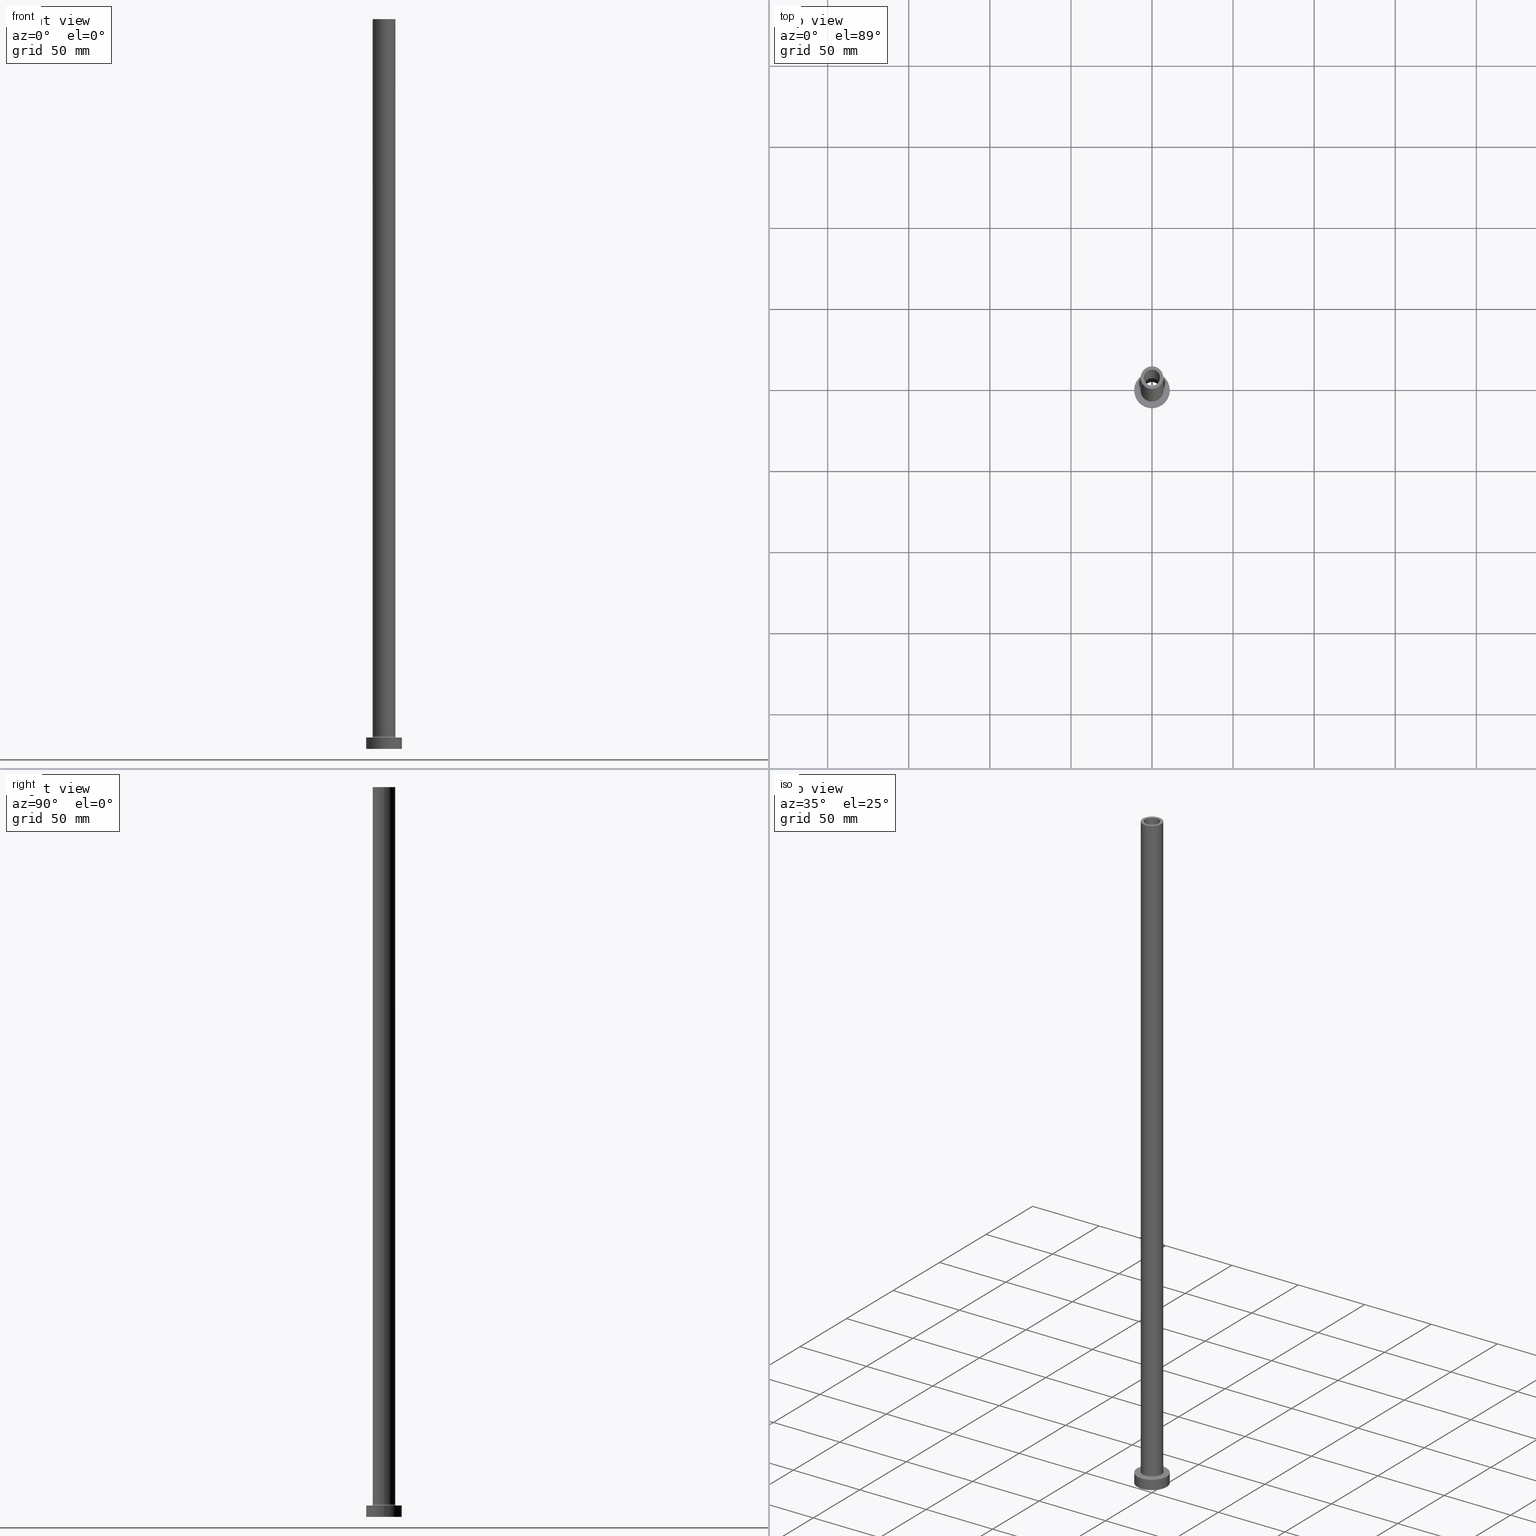
[diagram: canonical four-view strip — front | top / right | iso, engineering-drawing reading convention]
A machine part, canonical four-view strip (front | top / right | iso — engineering-drawing reading convention). The complete STEP part file that produces these views, byte-faithful:
ISO-10303-21;
HEADER;
FILE_DESCRIPTION (( 'STEP AP203' ),
    '1' );
FILE_NAME ('c3f9.STEP',
    '2023-02-13T10:06:24',
    ( '' ),
    ( '' ),
    'SwSTEP 2.0',
    'SolidWorks 2019',
    '' );
FILE_SCHEMA (( 'CONFIG_CONTROL_DESIGN' ));
ENDSEC;

DATA;
#1 = ADVANCED_BREP_SHAPE_REPRESENTATION ( 'c3f9', ( #118, #28 ), #54 ) ;
#2 = FACE_OUTER_BOUND ( 'NONE', #122, .T. ) ;
#3 = DIRECTION ( 'NONE',  ( 1.000000000000000000, 0.000000000000000000, 0.000000000000000000 ) ) ;
#4 = EDGE_LOOP ( 'NONE', ( #244, #272, #201, #21 ) ) ;
#5 = FACE_OUTER_BOUND ( 'NONE', #237, .T. ) ;
#6 = EDGE_CURVE ( 'NONE', #200, #267, #64, .T. ) ;
#7 = CIRCLE ( 'NONE', #354, 5.150000000000001243 ) ;
#8 = AXIS2_PLACEMENT_3D ( 'NONE', #113, #459, #142 ) ;
#9 = CARTESIAN_POINT ( 'NONE',  ( -11.00000000000000000, 0.000000000000000000, 7.000000000000000000 ) ) ;
#10 = VERTEX_POINT ( 'NONE', #449 ) ;
#11 = COORDINATED_UNIVERSAL_TIME_OFFSET ( 1, 0, .AHEAD. ) ;
#12 = CC_DESIGN_DATE_AND_TIME_ASSIGNMENT ( #290, #119, ( #335 ) ) ;
#13 = DIRECTION ( 'NONE',  ( -0.000000000000000000, -0.000000000000000000, -1.000000000000000000 ) ) ;
#14 = DATE_AND_TIME ( #124, #178 ) ;
#15 = ORIENTED_EDGE ( 'NONE', *, *, #386, .F. ) ;
#16 = TOROIDAL_SURFACE ( 'NONE', #27, 7.700000000000001066, 0.6999999999999999556 ) ;
#17 = CIRCLE ( 'NONE', #384, 5.000000000000000000 ) ;
#18 = CIRCLE ( 'NONE', #167, 0.7000000000000000666 ) ;
#19 = EDGE_CURVE ( 'NONE', #407, #134, #321, .T. ) ;
#20 = CALENDAR_DATE ( 2023, 13, 2 ) ;
#21 = ORIENTED_EDGE ( 'NONE', *, *, #125, .F. ) ;
#22 = SECURITY_CLASSIFICATION_LEVEL ( 'unclassified' ) ;
#23 = EDGE_CURVE ( 'NONE', #134, #407, #447, .T. ) ;
#24 = EDGE_LOOP ( 'NONE', ( #419, #285 ) ) ;
#25 = CARTESIAN_POINT ( 'NONE',  ( 0.000000000000000000, 0.000000000000000000, 405.0000000000000000 ) ) ;
#26 = APPROVAL_DATE_TIME ( #65, #351 ) ;
#27 = AXIS2_PLACEMENT_3D ( 'NONE', #257, #368, #197 ) ;
#28 = AXIS2_PLACEMENT_3D ( 'NONE', #171, #191, #298 ) ;
#29 = EDGE_LOOP ( 'NONE', ( #411, #150, #454, #230 ) ) ;
#30 = DIRECTION ( 'NONE',  ( 0.000000000000000000, 0.000000000000000000, 1.000000000000000000 ) ) ;
#31 = CC_DESIGN_PERSON_AND_ORGANIZATION_ASSIGNMENT ( #412, #260, ( #404 ) ) ;
#32 = CARTESIAN_POINT ( 'NONE',  ( 0.000000000000000000, 0.000000000000000000, 450.0000000000000000 ) ) ;
#33 = DIRECTION ( 'NONE',  ( -1.000000000000000000, 0.000000000000000000, 0.000000000000000000 ) ) ;
#34 = DIRECTION ( 'NONE',  ( 0.000000000000000000, 0.000000000000000000, 1.000000000000000000 ) ) ;
#35 = DIRECTION ( 'NONE',  ( 0.000000000000000000, 0.000000000000000000, -1.000000000000000000 ) ) ;
#36 = CIRCLE ( 'NONE', #427, 5.150000000000001243 ) ;
#37 = DIRECTION ( 'NONE',  ( 1.000000000000000000, 0.000000000000000000, 0.000000000000000000 ) ) ;
#38 = CARTESIAN_POINT ( 'NONE',  ( -5.150000000000001243, 0.000000000000000000, 419.5663996924429284 ) ) ;
#39 = FACE_BOUND ( 'NONE', #291, .T. ) ;
#40 = LINE ( 'NONE', #316, #410 ) ;
#41 = FACE_BOUND ( 'NONE', #24, .T. ) ;
#42 = AXIS2_PLACEMENT_3D ( 'NONE', #266, #58, #326 ) ;
#43 = AXIS2_PLACEMENT_3D ( 'NONE', #76, #221, #213 ) ;
#44 = EDGE_CURVE ( 'NONE', #184, #407, #306, .T. ) ;
#45 = DIRECTION ( 'NONE',  ( 1.000000000000000000, 0.000000000000000000, -0.000000000000000000 ) ) ;
#46 = LINE ( 'NONE', #460, #355 ) ;
#47 = AXIS2_PLACEMENT_3D ( 'NONE', #74, #319, #114 ) ;
#48 = PERSON_AND_ORGANIZATION_ROLE ( 'design_supplier' ) ;
#49 = CARTESIAN_POINT ( 'NONE',  ( 11.00000000000000000, 1.347111479062088405E-15, 7.000000000000000000 ) ) ;
#50 =( NAMED_UNIT ( * ) PLANE_ANGLE_UNIT ( ) SI_UNIT ( $, .RADIAN. ) );
#51 = EDGE_CURVE ( 'NONE', #55, #69, #246, .T. ) ;
#52 = CALENDAR_DATE ( 2023, 13, 2 ) ;
#53 = CIRCLE ( 'NONE', #194, 11.00000000000000000 ) ;
#54 =( GEOMETRIC_REPRESENTATION_CONTEXT ( 3 ) GLOBAL_UNCERTAINTY_ASSIGNED_CONTEXT ( ( #457 ) ) GLOBAL_UNIT_ASSIGNED_CONTEXT ( ( #196, #50, #130 ) ) REPRESENTATION_CONTEXT ( 'NONE', 'WORKASPACE' ) );
#55 = VERTEX_POINT ( 'NONE', #456 ) ;
#56 = APPLICATION_PROTOCOL_DEFINITION ( 'international standard', 'config_control_design', 1994, #390 ) ;
#57 = ADVANCED_FACE ( 'NONE', ( #414 ), #209, .T. ) ;
#58 = DIRECTION ( 'NONE',  ( 0.000000000000000000, 0.000000000000000000, 1.000000000000000000 ) ) ;
#59 = VERTEX_POINT ( 'NONE', #279 ) ;
#60 = APPROVAL ( #405, 'NEUR�EN�' ) ;
#61 = AXIS2_PLACEMENT_3D ( 'NONE', #425, #340, #33 ) ;
#62 = CARTESIAN_POINT ( 'NONE',  ( -5.150000000000001243, 0.000000000000000000, 0.000000000000000000 ) ) ;
#63 = ORIENTED_EDGE ( 'NONE', *, *, #386, .T. ) ;
#64 = LINE ( 'NONE', #304, #177 ) ;
#65 = DATE_AND_TIME ( #341, #247 ) ;
#66 = CARTESIAN_POINT ( 'NONE',  ( 0.000000000000000000, 0.000000000000000000, 7.699999999999985079 ) ) ;
#67 = AXIS2_PLACEMENT_3D ( 'NONE', #204, #378, #337 ) ;
#68 = APPROVAL_PERSON_ORGANIZATION ( #89, #302, #369 ) ;
#69 = VERTEX_POINT ( 'NONE', #347 ) ;
#70 = DIRECTION ( 'NONE',  ( 0.000000000000000000, 0.000000000000000000, 1.000000000000000000 ) ) ;
#71 = CYLINDRICAL_SURFACE ( 'NONE', #300, 5.000000000000000000 ) ;
#72 = EDGE_CURVE ( 'NONE', #55, #95, #98, .T. ) ;
#73 = DIRECTION ( 'NONE',  ( -1.000000000000000000, 1.224646799147351975E-16, 0.000000000000000000 ) ) ;
#74 = CARTESIAN_POINT ( 'NONE',  ( 0.000000000000000000, 0.000000000000000000, 7.000000000000000000 ) ) ;
#75 = CIRCLE ( 'NONE', #156, 7.700000000000001066 ) ;
#76 = CARTESIAN_POINT ( 'NONE',  ( 0.000000000000000000, 0.000000000000000000, 450.0000000000000000 ) ) ;
#77 = CARTESIAN_POINT ( 'NONE',  ( 0.000000000000000000, 0.000000000000000000, 419.5663996924429284 ) ) ;
#78 = CARTESIAN_POINT ( 'NONE',  ( -7.700000000000001066, 9.429780353434621002E-16, 6.999999999999992006 ) ) ;
#79 = DIRECTION ( 'NONE',  ( 1.000000000000000000, 0.000000000000000000, 0.000000000000000000 ) ) ;
#80 = ORIENTED_EDGE ( 'NONE', *, *, #231, .T. ) ;
#81 = DIRECTION ( 'NONE',  ( 1.000000000000000000, 0.000000000000000000, -0.000000000000000000 ) ) ;
#82 = FACE_OUTER_BOUND ( 'NONE', #214, .T. ) ;
#83 = ORIENTED_EDGE ( 'NONE', *, *, #251, .F. ) ;
#84 = AXIS2_PLACEMENT_3D ( 'NONE', #287, #437, #117 ) ;
#85 = DIRECTION ( 'NONE',  ( 0.000000000000000000, 0.000000000000000000, 1.000000000000000000 ) ) ;
#86 = ORIENTED_EDGE ( 'NONE', *, *, #439, .T. ) ;
#87 = COORDINATED_UNIVERSAL_TIME_OFFSET ( 1, 0, .AHEAD. ) ;
#88 = ORIENTED_EDGE ( 'NONE', *, *, #6, .T. ) ;
#89 = PERSON_AND_ORGANIZATION ( #160, #277 ) ;
#90 = DIRECTION ( 'NONE',  ( 1.000000000000000000, 0.000000000000000000, 0.000000000000000000 ) ) ;
#91 = EDGE_CURVE ( 'NONE', #136, #95, #7, .T. ) ;
#92 = APPROVAL_DATE_TIME ( #169, #302 ) ;
#93 = TOROIDAL_SURFACE ( 'NONE', #42, 7.700000000000001066, 0.6999999999999999556 ) ;
#94 = CARTESIAN_POINT ( 'NONE',  ( -11.00000000000000000, 0.000000000000000000, 0.000000000000000000 ) ) ;
#95 = VERTEX_POINT ( 'NONE', #62 ) ;
#96 = EDGE_CURVE ( 'NONE', #129, #330, #383, .T. ) ;
#97 = DIRECTION ( 'NONE',  ( -0.000000000000000000, -0.000000000000000000, -1.000000000000000000 ) ) ;
#98 = LINE ( 'NONE', #38, #228 ) ;
#99 = PRODUCT ( 'c3f9', 'c3f9', '', ( #235 ) ) ;
#100 = ORIENTED_EDGE ( 'NONE', *, *, #421, .T. ) ;
#101 = CIRCLE ( 'NONE', #203, 5.150000000000001243 ) ;
#102 = DIRECTION ( 'NONE',  ( -0.000000000000000000, -0.000000000000000000, -1.000000000000000000 ) ) ;
#103 = DIRECTION ( 'NONE',  ( 1.000000000000000000, 0.000000000000000000, 0.000000000000000000 ) ) ;
#104 = ORIENTED_EDGE ( 'NONE', *, *, #251, .T. ) ;
#105 = ORIENTED_EDGE ( 'NONE', *, *, #106, .F. ) ;
#106 = EDGE_CURVE ( 'NONE', #200, #165, #219, .T. ) ;
#107 = CARTESIAN_POINT ( 'NONE',  ( 7.700000000000001066, 0.000000000000000000, 6.999999999999992006 ) ) ;
#108 = DESIGN_CONTEXT ( 'detailed design', #390, 'design' ) ;
#109 = LOCAL_TIME ( 11, 6, 24.00000000000000000, #87 ) ;
#110 = PLANE ( 'NONE',  #453 ) ;
#111 = CC_DESIGN_PERSON_AND_ORGANIZATION_ASSIGNMENT ( #265, #127, ( #99 ) ) ;
#112 = DIRECTION ( 'NONE',  ( 1.000000000000000000, 0.000000000000000000, 0.000000000000000000 ) ) ;
#113 = CARTESIAN_POINT ( 'NONE',  ( 0.000000000000000000, 0.000000000000000000, 419.5663996924429284 ) ) ;
#114 = DIRECTION ( 'NONE',  ( 1.000000000000000000, 0.000000000000000000, 0.000000000000000000 ) ) ;
#115 = AXIS2_PLACEMENT_3D ( 'NONE', #284, #222, #45 ) ;
#116 = CARTESIAN_POINT ( 'NONE',  ( 0.000000000000000000, 0.000000000000000000, 450.0000000000000000 ) ) ;
#117 = DIRECTION ( 'NONE',  ( -1.000000000000000000, 0.000000000000000000, 0.000000000000000000 ) ) ;
#118 = MANIFOLD_SOLID_BREP ( 'Odebrat vysunut�m4', #145 ) ;
#119 = DATE_TIME_ROLE ( 'classification_date' ) ;
#120 = EDGE_LOOP ( 'NONE', ( #15, #422, #100, #299 ) ) ;
#121 = AXIS2_PLACEMENT_3D ( 'NONE', #32, #275, #416 ) ;
#122 = EDGE_LOOP ( 'NONE', ( #271, #80, #366, #262 ) ) ;
#123 = EDGE_LOOP ( 'NONE', ( #451, #371, #329, #172 ) ) ;
#124 = CALENDAR_DATE ( 2023, 13, 2 ) ;
#125 = EDGE_CURVE ( 'NONE', #128, #10, #434, .T. ) ;
#126 = EDGE_LOOP ( 'NONE', ( #360, #380, #225, #443 ) ) ;
#127 = PERSON_AND_ORGANIZATION_ROLE ( 'design_owner' ) ;
#128 = VERTEX_POINT ( 'NONE', #320 ) ;
#129 = VERTEX_POINT ( 'NONE', #356 ) ;
#130 =( NAMED_UNIT ( * ) SI_UNIT ( $, .STERADIAN. ) SOLID_ANGLE_UNIT ( ) );
#131 = VECTOR ( 'NONE', #382, 1000.000000000000000 ) ;
#132 = CYLINDRICAL_SURFACE ( 'NONE', #67, 7.000000000000000888 ) ;
#133 = LOCAL_TIME ( 11, 6, 24.00000000000000000, #226 ) ;
#134 = VERTEX_POINT ( 'NONE', #154 ) ;
#135 = ORIENTED_EDGE ( 'NONE', *, *, #303, .T. ) ;
#136 = VERTEX_POINT ( 'NONE', #392 ) ;
#137 = DIRECTION ( 'NONE',  ( -1.000000000000000000, 0.000000000000000000, 0.000000000000000000 ) ) ;
#138 = DIRECTION ( 'NONE',  ( 0.000000000000000000, 0.000000000000000000, -1.000000000000000000 ) ) ;
#139 = CIRCLE ( 'NONE', #393, 7.700000000000001066 ) ;
#140 = SHAPE_DEFINITION_REPRESENTATION ( #339, #1 ) ;
#141 = CARTESIAN_POINT ( 'NONE',  ( 0.000000000000000000, 0.000000000000000000, 0.000000000000000000 ) ) ;
#142 = DIRECTION ( 'NONE',  ( -1.000000000000000000, 0.000000000000000000, 0.000000000000000000 ) ) ;
#143 = DIRECTION ( 'NONE',  ( 1.000000000000000000, 0.000000000000000000, 0.000000000000000000 ) ) ;
#144 = ADVANCED_FACE ( 'NONE', ( #82 ), #71, .F. ) ;
#145 = CLOSED_SHELL ( 'NONE', ( #144, #176, #238, #409, #57, #229, #223, #336, #286, #396, #240, #399, #381, #295 ) ) ;
#146 = PRODUCT_DEFINITION_FORMATION_WITH_SPECIFIED_SOURCE ( 'LIBOVOLN�', '', #99, .NOT_KNOWN. ) ;
#147 = CYLINDRICAL_SURFACE ( 'NONE', #43, 7.000000000000000888 ) ;
#148 = PLANE ( 'NONE',  #115 ) ;
#149 = EDGE_CURVE ( 'NONE', #95, #136, #36, .T. ) ;
#150 = ORIENTED_EDGE ( 'NONE', *, *, #349, .T. ) ;
#151 = DIRECTION ( 'NONE',  ( 0.000000000000000000, 0.000000000000000000, 1.000000000000000000 ) ) ;
#152 = DIRECTION ( 'NONE',  ( 1.000000000000000000, 0.000000000000000000, 0.000000000000000000 ) ) ;
#153 = DIRECTION ( 'NONE',  ( 0.000000000000000000, -1.000000000000000000, 0.000000000000000000 ) ) ;
#154 = CARTESIAN_POINT ( 'NONE',  ( 7.000000000000000888, 8.572527594031474176E-16, 7.699999999999985079 ) ) ;
#155 = ORIENTED_EDGE ( 'NONE', *, *, #439, .F. ) ;
#156 = AXIS2_PLACEMENT_3D ( 'NONE', #343, #97, #455 ) ;
#157 = LOCAL_TIME ( 11, 6, 24.00000000000000000, #11 ) ;
#158 = DIRECTION ( 'NONE',  ( 1.000000000000000000, 0.000000000000000000, 0.000000000000000000 ) ) ;
#159 = ORIENTED_EDGE ( 'NONE', *, *, #217, .T. ) ;
#160 = PERSON ( 'NEUR�EN�', 'NEUR�EN�', 'NEUR�EN�', ('NEUR�EN�'), ('NEUR�EN�'), ('NEUR�EN�') ) ;
#161 = CALENDAR_DATE ( 2023, 13, 2 ) ;
#162 = APPROVAL_DATE_TIME ( #14, #60 ) ;
#163 = CC_DESIGN_PERSON_AND_ORGANIZATION_ASSIGNMENT ( #438, #199, ( #146 ) ) ;
#164 = AXIS2_PLACEMENT_3D ( 'NONE', #66, #310, #143 ) ;
#165 = VERTEX_POINT ( 'NONE', #49 ) ;
#166 = APPLICATION_PROTOCOL_DEFINITION ( 'international standard', 'config_control_design', 1994, #373 ) ;
#167 = AXIS2_PLACEMENT_3D ( 'NONE', #313, #153, #283 ) ;
#168 = ORIENTED_EDGE ( 'NONE', *, *, #308, .T. ) ;
#169 = DATE_AND_TIME ( #52, #133 ) ;
#170 = ORIENTED_EDGE ( 'NONE', *, *, #6, .F. ) ;
#171 = CARTESIAN_POINT ( 'NONE',  ( 0.000000000000000000, 0.000000000000000000, 0.000000000000000000 ) ) ;
#172 = ORIENTED_EDGE ( 'NONE', *, *, #72, .F. ) ;
#173 = FACE_OUTER_BOUND ( 'NONE', #444, .T. ) ;
#174 = AXIS2_PLACEMENT_3D ( 'NONE', #435, #70, #318 ) ;
#175 = DIRECTION ( 'NONE',  ( 0.000000000000000000, 0.000000000000000000, 1.000000000000000000 ) ) ;
#176 = ADVANCED_FACE ( 'NONE', ( #461 ), #186, .F. ) ;
#177 = VECTOR ( 'NONE', #179, 1000.000000000000000 ) ;
#178 = LOCAL_TIME ( 11, 6, 24.00000000000000000, #408 ) ;
#179 = DIRECTION ( 'NONE',  ( -0.000000000000000000, -0.000000000000000000, -1.000000000000000000 ) ) ;
#180 = CARTESIAN_POINT ( 'NONE',  ( -5.000000000000000000, 0.000000000000000000, 450.0000000000000000 ) ) ;
#181 = DIRECTION ( 'NONE',  ( 0.000000000000000000, 0.000000000000000000, 1.000000000000000000 ) ) ;
#182 = CARTESIAN_POINT ( 'NONE',  ( 7.000000000000000888, 8.572527594031474176E-16, 450.0000000000000000 ) ) ;
#183 = FACE_OUTER_BOUND ( 'NONE', #352, .T. ) ;
#184 = VERTEX_POINT ( 'NONE', #429 ) ;
#185 = DIRECTION ( 'NONE',  ( 1.000000000000000000, 0.000000000000000000, -0.000000000000000000 ) ) ;
#186 = CYLINDRICAL_SURFACE ( 'NONE', #281, 5.150000000000001243 ) ;
#187 = CARTESIAN_POINT ( 'NONE',  ( 7.000000000000000888, 8.572527594031474176E-16, 450.0000000000000000 ) ) ;
#188 = CYLINDRICAL_SURFACE ( 'NONE', #84, 11.00000000000000000 ) ;
#189 = PERSON_AND_ORGANIZATION ( #160, #277 ) ;
#190 = DIRECTION ( 'NONE',  ( -1.000000000000000000, 0.000000000000000000, 0.000000000000000000 ) ) ;
#191 = DIRECTION ( 'NONE',  ( 0.000000000000000000, 0.000000000000000000, 1.000000000000000000 ) ) ;
#192 = EDGE_CURVE ( 'NONE', #59, #267, #53, .T. ) ;
#193 = ORIENTED_EDGE ( 'NONE', *, *, #273, .T. ) ;
#194 = AXIS2_PLACEMENT_3D ( 'NONE', #359, #324, #152 ) ;
#195 = CC_DESIGN_APPROVAL ( #302, ( #146 ) ) ;
#196 =( LENGTH_UNIT ( ) NAMED_UNIT ( * ) SI_UNIT ( .MILLI., .METRE. ) );
#197 = DIRECTION ( 'NONE',  ( 1.000000000000000000, 0.000000000000000000, 0.000000000000000000 ) ) ;
#198 = ORIENTED_EDGE ( 'NONE', *, *, #421, .F. ) ;
#199 = PERSON_AND_ORGANIZATION_ROLE ( 'creator' ) ;
#200 = VERTEX_POINT ( 'NONE', #9 ) ;
#201 = ORIENTED_EDGE ( 'NONE', *, *, #346, .T. ) ;
#202 = ORIENTED_EDGE ( 'NONE', *, *, #346, .F. ) ;
#203 = AXIS2_PLACEMENT_3D ( 'NONE', #253, #398, #79 ) ;
#204 = CARTESIAN_POINT ( 'NONE',  ( 0.000000000000000000, 0.000000000000000000, 450.0000000000000000 ) ) ;
#205 = CARTESIAN_POINT ( 'NONE',  ( -7.000000000000000888, 0.000000000000000000, 450.0000000000000000 ) ) ;
#206 = ORIENTED_EDGE ( 'NONE', *, *, #303, .F. ) ;
#207 = FACE_OUTER_BOUND ( 'NONE', #4, .T. ) ;
#208 = CC_DESIGN_PERSON_AND_ORGANIZATION_ASSIGNMENT ( #189, #323, ( #335 ) ) ;
#209 = CYLINDRICAL_SURFACE ( 'NONE', #402, 11.00000000000000000 ) ;
#210 = AXIS2_PLACEMENT_3D ( 'NONE', #245, #34, #375 ) ;
#211 = AXIS2_PLACEMENT_3D ( 'NONE', #224, #85, #445 ) ;
#212 = DIRECTION ( 'NONE',  ( 0.000000000000000000, 0.000000000000000000, 1.000000000000000000 ) ) ;
#213 = DIRECTION ( 'NONE',  ( -1.000000000000000000, 0.000000000000000000, 0.000000000000000000 ) ) ;
#214 = EDGE_LOOP ( 'NONE', ( #86, #168, #357, #202 ) ) ;
#215 = LINE ( 'NONE', #182, #327 ) ;
#216 = DIRECTION ( 'NONE',  ( 0.000000000000000000, 0.000000000000000000, -1.000000000000000000 ) ) ;
#217 = EDGE_CURVE ( 'NONE', #184, #413, #241, .T. ) ;
#218 = AXIS2_PLACEMENT_3D ( 'NONE', #264, #294, #90 ) ;
#219 = CIRCLE ( 'NONE', #47, 11.00000000000000000 ) ;
#220 = ORIENTED_EDGE ( 'NONE', *, *, #149, .F. ) ;
#221 = DIRECTION ( 'NONE',  ( -0.000000000000000000, -0.000000000000000000, -1.000000000000000000 ) ) ;
#222 = DIRECTION ( 'NONE',  ( 0.000000000000000000, 0.000000000000000000, 1.000000000000000000 ) ) ;
#223 = ADVANCED_FACE ( 'NONE', ( #41, #183 ), #148, .T. ) ;
#224 = CARTESIAN_POINT ( 'NONE',  ( 0.000000000000000000, 0.000000000000000000, 450.0000000000000000 ) ) ;
#225 = ORIENTED_EDGE ( 'NONE', *, *, #44, .T. ) ;
#226 = COORDINATED_UNIVERSAL_TIME_OFFSET ( 1, 0, .AHEAD. ) ;
#227 = DIRECTION ( 'NONE',  ( 0.000000000000000000, 0.000000000000000000, -1.000000000000000000 ) ) ;
#228 = VECTOR ( 'NONE', #35, 1000.000000000000000 ) ;
#229 = ADVANCED_FACE ( 'NONE', ( #432 ), #188, .T. ) ;
#230 = ORIENTED_EDGE ( 'NONE', *, *, #44, .F. ) ;
#231 = EDGE_CURVE ( 'NONE', #69, #55, #101, .T. ) ;
#232 = APPROVAL_ROLE ( '' ) ;
#233 = ORIENTED_EDGE ( 'NONE', *, *, #231, .F. ) ;
#234 = APPROVAL_STATUS ( 'not_yet_approved' ) ;
#235 = MECHANICAL_CONTEXT ( 'NONE', #373, 'mechanical' ) ;
#236 = CARTESIAN_POINT ( 'NONE',  ( 11.00000000000000000, 1.347111479062088405E-15, 7.000000000000000000 ) ) ;
#237 = EDGE_LOOP ( 'NONE', ( #159, #441 ) ) ;
#238 = ADVANCED_FACE ( 'NONE', ( #363 ), #93, .F. ) ;
#239 = ORIENTED_EDGE ( 'NONE', *, *, #106, .T. ) ;
#240 = ADVANCED_FACE ( 'NONE', ( #332 ), #16, .F. ) ;
#241 = CIRCLE ( 'NONE', #440, 7.000000000000000888 ) ;
#242 = CIRCLE ( 'NONE', #282, 0.7000000000000000666 ) ;
#243 = APPROVAL_ROLE ( '' ) ;
#244 = ORIENTED_EDGE ( 'NONE', *, *, #308, .F. ) ;
#245 = CARTESIAN_POINT ( 'NONE',  ( 0.000000000000000000, 0.000000000000000000, 7.699999999999985079 ) ) ;
#246 = CIRCLE ( 'NONE', #376, 5.150000000000001243 ) ;
#247 = LOCAL_TIME ( 11, 6, 24.00000000000000000, #379 ) ;
#248 = CARTESIAN_POINT ( 'NONE',  ( 0.000000000000000000, 0.000000000000000000, 450.0000000000000000 ) ) ;
#249 = CARTESIAN_POINT ( 'NONE',  ( -7.000000000000000888, 0.000000000000000000, 7.699999999999985079 ) ) ;
#250 = DIRECTION ( 'NONE',  ( 0.000000000000000000, 0.000000000000000000, 1.000000000000000000 ) ) ;
#251 = EDGE_CURVE ( 'NONE', #267, #59, #418, .T. ) ;
#252 = CARTESIAN_POINT ( 'NONE',  ( 0.000000000000000000, 0.000000000000000000, 405.0000000000000000 ) ) ;
#253 = CARTESIAN_POINT ( 'NONE',  ( 0.000000000000000000, 0.000000000000000000, 405.0000000000000000 ) ) ;
#254 = CARTESIAN_POINT ( 'NONE',  ( 0.000000000000000000, 0.000000000000000000, 0.000000000000000000 ) ) ;
#255 = CARTESIAN_POINT ( 'NONE',  ( 0.000000000000000000, 0.000000000000000000, 0.000000000000000000 ) ) ;
#256 = PRODUCT_RELATED_PRODUCT_CATEGORY ( 'detail', '', ( #99 ) ) ;
#257 = CARTESIAN_POINT ( 'NONE',  ( 0.000000000000000000, 0.000000000000000000, 7.699999999999985079 ) ) ;
#258 = AXIS2_PLACEMENT_3D ( 'NONE', #423, #175, #37 ) ;
#259 = APPROVAL_PERSON_ORGANIZATION ( #458, #351, #243 ) ;
#260 = PERSON_AND_ORGANIZATION_ROLE ( 'creator' ) ;
#261 = ORIENTED_EDGE ( 'NONE', *, *, #91, .F. ) ;
#262 = ORIENTED_EDGE ( 'NONE', *, *, #149, .T. ) ;
#263 = DATE_AND_TIME ( #20, #109 ) ;
#264 = CARTESIAN_POINT ( 'NONE',  ( 0.000000000000000000, 0.000000000000000000, 0.000000000000000000 ) ) ;
#265 = PERSON_AND_ORGANIZATION ( #160, #277 ) ;
#266 = CARTESIAN_POINT ( 'NONE',  ( 0.000000000000000000, 0.000000000000000000, 7.699999999999985079 ) ) ;
#267 = VERTEX_POINT ( 'NONE', #94 ) ;
#268 = CC_DESIGN_APPROVAL ( #351, ( #335 ) ) ;
#269 = ORIENTED_EDGE ( 'NONE', *, *, #192, .T. ) ;
#270 = ORIENTED_EDGE ( 'NONE', *, *, #328, .F. ) ;
#271 = ORIENTED_EDGE ( 'NONE', *, *, #430, .F. ) ;
#272 = ORIENTED_EDGE ( 'NONE', *, *, #96, .T. ) ;
#273 = EDGE_CURVE ( 'NONE', #165, #59, #325, .T. ) ;
#274 = EDGE_LOOP ( 'NONE', ( #374, #403 ) ) ;
#275 = DIRECTION ( 'NONE',  ( 0.000000000000000000, 0.000000000000000000, 1.000000000000000000 ) ) ;
#276 = AXIS2_PLACEMENT_3D ( 'NONE', #25, #30, #420 ) ;
#277 = ORGANIZATION ( 'NEUR�EN�', 'NEUR�EN�', '' ) ;
#278 = CYLINDRICAL_SURFACE ( 'NONE', #61, 5.000000000000000000 ) ;
#279 = CARTESIAN_POINT ( 'NONE',  ( 11.00000000000000000, 1.347111479062088405E-15, 0.000000000000000000 ) ) ;
#280 = DIRECTION ( 'NONE',  ( -0.000000000000000000, -0.000000000000000000, -1.000000000000000000 ) ) ;
#281 = AXIS2_PLACEMENT_3D ( 'NONE', #77, #216, #317 ) ;
#282 = AXIS2_PLACEMENT_3D ( 'NONE', #348, #353, #73 ) ;
#283 = DIRECTION ( 'NONE',  ( 0.000000000000000000, 0.000000000000000000, -1.000000000000000000 ) ) ;
#284 = CARTESIAN_POINT ( 'NONE',  ( 0.000000000000000000, 0.000000000000000000, 7.000000000000000000 ) ) ;
#285 = ORIENTED_EDGE ( 'NONE', *, *, #361, .T. ) ;
#286 = ADVANCED_FACE ( 'NONE', ( #446 ), #132, .T. ) ;
#287 = CARTESIAN_POINT ( 'NONE',  ( 0.000000000000000000, 0.000000000000000000, 7.000000000000000000 ) ) ;
#288 = CIRCLE ( 'NONE', #258, 11.00000000000000000 ) ;
#289 = PLANE ( 'NONE',  #370 ) ;
#290 = DATE_AND_TIME ( #161, #157 ) ;
#291 = EDGE_LOOP ( 'NONE', ( #155, #377 ) ) ;
#292 = CIRCLE ( 'NONE', #276, 5.000000000000000000 ) ;
#293 = ORIENTED_EDGE ( 'NONE', *, *, #273, .F. ) ;
#294 = DIRECTION ( 'NONE',  ( 0.000000000000000000, 0.000000000000000000, 1.000000000000000000 ) ) ;
#295 = ADVANCED_FACE ( 'NONE', ( #207 ), #278, .F. ) ;
#296 = EDGE_LOOP ( 'NONE', ( #389, #63, #270, #198 ) ) ;
#297 = EDGE_LOOP ( 'NONE', ( #293, #105, #88, #104 ) ) ;
#298 = DIRECTION ( 'NONE',  ( 1.000000000000000000, 0.000000000000000000, 0.000000000000000000 ) ) ;
#299 = ORIENTED_EDGE ( 'NONE', *, *, #361, .F. ) ;
#300 = AXIS2_PLACEMENT_3D ( 'NONE', #395, #227, #190 ) ;
#301 = FACE_BOUND ( 'NONE', #331, .T. ) ;
#302 = APPROVAL ( #234, 'NEUR�EN�' ) ;
#303 = EDGE_CURVE ( 'NONE', #165, #200, #288, .T. ) ;
#304 = CARTESIAN_POINT ( 'NONE',  ( -11.00000000000000000, 0.000000000000000000, 7.000000000000000000 ) ) ;
#305 = CARTESIAN_POINT ( 'NONE',  ( 5.000000000000000000, 6.123233995736765296E-16, 450.0000000000000000 ) ) ;
#306 = LINE ( 'NONE', #205, #131 ) ;
#307 = EDGE_LOOP ( 'NONE', ( #415, #233 ) ) ;
#308 = EDGE_CURVE ( 'NONE', #129, #128, #385, .T. ) ;
#309 = CIRCLE ( 'NONE', #211, 7.000000000000000888 ) ;
#310 = DIRECTION ( 'NONE',  ( 0.000000000000000000, 0.000000000000000000, 1.000000000000000000 ) ) ;
#311 = EDGE_CURVE ( 'NONE', #10, #128, #292, .T. ) ;
#312 = CYLINDRICAL_SURFACE ( 'NONE', #8, 5.150000000000001243 ) ;
#313 = CARTESIAN_POINT ( 'NONE',  ( 7.700000000000001066, 0.000000000000000000, 7.699999999999985079 ) ) ;
#314 = VECTOR ( 'NONE', #138, 1000.000000000000000 ) ;
#315 = CC_DESIGN_DATE_AND_TIME_ASSIGNMENT ( #263, #406, ( #404 ) ) ;
#316 = CARTESIAN_POINT ( 'NONE',  ( -5.000000000000000000, 0.000000000000000000, 450.0000000000000000 ) ) ;
#317 = DIRECTION ( 'NONE',  ( -1.000000000000000000, 0.000000000000000000, 0.000000000000000000 ) ) ;
#318 = DIRECTION ( 'NONE',  ( 1.000000000000000000, 0.000000000000000000, -0.000000000000000000 ) ) ;
#319 = DIRECTION ( 'NONE',  ( 0.000000000000000000, 0.000000000000000000, 1.000000000000000000 ) ) ;
#320 = CARTESIAN_POINT ( 'NONE',  ( 5.000000000000000000, 6.123233995736765296E-16, 405.0000000000000000 ) ) ;
#321 = CIRCLE ( 'NONE', #164, 7.000000000000000888 ) ;
#322 = CC_DESIGN_APPROVAL ( #60, ( #404 ) ) ;
#323 = PERSON_AND_ORGANIZATION_ROLE ( 'classification_officer' ) ;
#324 = DIRECTION ( 'NONE',  ( 0.000000000000000000, 0.000000000000000000, 1.000000000000000000 ) ) ;
#325 = LINE ( 'NONE', #236, #334 ) ;
#326 = DIRECTION ( 'NONE',  ( 1.000000000000000000, 0.000000000000000000, 0.000000000000000000 ) ) ;
#327 = VECTOR ( 'NONE', #280, 1000.000000000000000 ) ;
#328 = EDGE_CURVE ( 'NONE', #333, #448, #75, .T. ) ;
#329 = ORIENTED_EDGE ( 'NONE', *, *, #91, .T. ) ;
#330 = VERTEX_POINT ( 'NONE', #180 ) ;
#331 = EDGE_LOOP ( 'NONE', ( #220, #261 ) ) ;
#332 = FACE_OUTER_BOUND ( 'NONE', #120, .T. ) ;
#333 = VERTEX_POINT ( 'NONE', #107 ) ;
#334 = VECTOR ( 'NONE', #372, 1000.000000000000000 ) ;
#335 = SECURITY_CLASSIFICATION ( '', '', #22 ) ;
#336 = ADVANCED_FACE ( 'NONE', ( #301, #173 ), #289, .F. ) ;
#337 = DIRECTION ( 'NONE',  ( -1.000000000000000000, 0.000000000000000000, 0.000000000000000000 ) ) ;
#338 = DIRECTION ( 'NONE',  ( 1.000000000000000000, 0.000000000000000000, 0.000000000000000000 ) ) ;
#339 = PRODUCT_DEFINITION_SHAPE ( 'NONE', 'NONE',  #404 ) ;
#340 = DIRECTION ( 'NONE',  ( 0.000000000000000000, 0.000000000000000000, -1.000000000000000000 ) ) ;
#341 = CALENDAR_DATE ( 2023, 13, 2 ) ;
#342 = EDGE_LOOP ( 'NONE', ( #206, #193, #269, #170 ) ) ;
#343 = CARTESIAN_POINT ( 'NONE',  ( 0.000000000000000000, 0.000000000000000000, 7.000000000000000000 ) ) ;
#344 = CARTESIAN_POINT ( 'NONE',  ( 0.000000000000000000, 0.000000000000000000, 7.000000000000000000 ) ) ;
#345 = APPROVAL_PERSON_ORGANIZATION ( #442, #60, #232 ) ;
#346 = EDGE_CURVE ( 'NONE', #330, #10, #40, .T. ) ;
#347 = CARTESIAN_POINT ( 'NONE',  ( 5.150000000000001243, 6.306931015608869596E-16, 405.0000000000000000 ) ) ;
#348 = CARTESIAN_POINT ( 'NONE',  ( -7.700000000000001066, 9.429780353434621002E-16, 7.699999999999985079 ) ) ;
#349 = EDGE_CURVE ( 'NONE', #413, #134, #215, .T. ) ;
#350 = DIRECTION ( 'NONE',  ( 1.000000000000000000, 0.000000000000000000, 0.000000000000000000 ) ) ;
#351 = APPROVAL ( #424, 'NEUR�EN�' ) ;
#352 = EDGE_LOOP ( 'NONE', ( #239, #135 ) ) ;
#353 = DIRECTION ( 'NONE',  ( 1.224646799147353207E-16, 1.000000000000000000, -0.000000000000000000 ) ) ;
#354 = AXIS2_PLACEMENT_3D ( 'NONE', #141, #426, #338 ) ;
#355 = VECTOR ( 'NONE', #431, 1000.000000000000000 ) ;
#356 = CARTESIAN_POINT ( 'NONE',  ( 5.000000000000000000, 6.123233995736765296E-16, 450.0000000000000000 ) ) ;
#357 = ORIENTED_EDGE ( 'NONE', *, *, #311, .F. ) ;
#358 = FACE_OUTER_BOUND ( 'NONE', #307, .T. ) ;
#359 = CARTESIAN_POINT ( 'NONE',  ( 0.000000000000000000, 0.000000000000000000, 0.000000000000000000 ) ) ;
#360 = ORIENTED_EDGE ( 'NONE', *, *, #349, .F. ) ;
#361 = EDGE_CURVE ( 'NONE', #448, #333, #139, .T. ) ;
#362 = DIRECTION ( 'NONE',  ( -0.000000000000000000, -0.000000000000000000, -1.000000000000000000 ) ) ;
#363 = FACE_OUTER_BOUND ( 'NONE', #296, .T. ) ;
#364 = ORIENTED_EDGE ( 'NONE', *, *, #192, .F. ) ;
#365 = PERSON_AND_ORGANIZATION ( #160, #277 ) ;
#366 = ORIENTED_EDGE ( 'NONE', *, *, #72, .T. ) ;
#367 = CC_DESIGN_PERSON_AND_ORGANIZATION_ASSIGNMENT ( #365, #48, ( #146 ) ) ;
#368 = DIRECTION ( 'NONE',  ( 0.000000000000000000, 0.000000000000000000, 1.000000000000000000 ) ) ;
#369 = APPROVAL_ROLE ( '' ) ;
#370 = AXIS2_PLACEMENT_3D ( 'NONE', #254, #151, #185 ) ;
#371 = ORIENTED_EDGE ( 'NONE', *, *, #430, .T. ) ;
#372 = DIRECTION ( 'NONE',  ( -0.000000000000000000, -0.000000000000000000, -1.000000000000000000 ) ) ;
#373 = APPLICATION_CONTEXT ( 'configuration controlled 3d designs of mechanical parts and assemblies' ) ;
#374 = ORIENTED_EDGE ( 'NONE', *, *, #311, .T. ) ;
#375 = DIRECTION ( 'NONE',  ( 1.000000000000000000, 0.000000000000000000, 0.000000000000000000 ) ) ;
#376 = AXIS2_PLACEMENT_3D ( 'NONE', #452, #212, #103 ) ;
#377 = ORIENTED_EDGE ( 'NONE', *, *, #96, .F. ) ;
#378 = DIRECTION ( 'NONE',  ( -0.000000000000000000, -0.000000000000000000, -1.000000000000000000 ) ) ;
#379 = COORDINATED_UNIVERSAL_TIME_OFFSET ( 1, 0, .AHEAD. ) ;
#380 = ORIENTED_EDGE ( 'NONE', *, *, #217, .F. ) ;
#381 = ADVANCED_FACE ( 'NONE', ( #400, #358 ), #110, .F. ) ;
#382 = DIRECTION ( 'NONE',  ( -0.000000000000000000, -0.000000000000000000, -1.000000000000000000 ) ) ;
#383 = CIRCLE ( 'NONE', #121, 5.000000000000000000 ) ;
#384 = AXIS2_PLACEMENT_3D ( 'NONE', #116, #397, #112 ) ;
#385 = LINE ( 'NONE', #305, #314 ) ;
#386 = EDGE_CURVE ( 'NONE', #407, #448, #242, .T. ) ;
#387 = PLANE ( 'NONE',  #174 ) ;
#388 = DIRECTION ( 'NONE',  ( 0.000000000000000000, 0.000000000000000000, 1.000000000000000000 ) ) ;
#389 = ORIENTED_EDGE ( 'NONE', *, *, #19, .F. ) ;
#390 = APPLICATION_CONTEXT ( 'configuration controlled 3d designs of mechanical parts and assemblies' ) ;
#391 = DIRECTION ( 'NONE',  ( 1.000000000000000000, 0.000000000000000000, 0.000000000000000000 ) ) ;
#392 = CARTESIAN_POINT ( 'NONE',  ( 5.150000000000001243, 6.306931015608869596E-16, 0.000000000000000000 ) ) ;
#393 = AXIS2_PLACEMENT_3D ( 'NONE', #433, #362, #391 ) ;
#394 = FACE_OUTER_BOUND ( 'NONE', #29, .T. ) ;
#395 = CARTESIAN_POINT ( 'NONE',  ( 0.000000000000000000, 0.000000000000000000, 450.0000000000000000 ) ) ;
#396 = ADVANCED_FACE ( 'NONE', ( #39, #5 ), #387, .T. ) ;
#397 = DIRECTION ( 'NONE',  ( 0.000000000000000000, 0.000000000000000000, 1.000000000000000000 ) ) ;
#398 = DIRECTION ( 'NONE',  ( 0.000000000000000000, 0.000000000000000000, 1.000000000000000000 ) ) ;
#399 = ADVANCED_FACE ( 'NONE', ( #2 ), #312, .F. ) ;
#400 = FACE_BOUND ( 'NONE', #274, .T. ) ;
#401 = CARTESIAN_POINT ( 'NONE',  ( 0.000000000000000000, 0.000000000000000000, 405.0000000000000000 ) ) ;
#402 = AXIS2_PLACEMENT_3D ( 'NONE', #344, #102, #137 ) ;
#403 = ORIENTED_EDGE ( 'NONE', *, *, #125, .T. ) ;
#404 = PRODUCT_DEFINITION ( 'NEZN�M�', '', #146, #108 ) ;
#405 = APPROVAL_STATUS ( 'not_yet_approved' ) ;
#406 = DATE_TIME_ROLE ( 'creation_date' ) ;
#407 = VERTEX_POINT ( 'NONE', #249 ) ;
#408 = COORDINATED_UNIVERSAL_TIME_OFFSET ( 1, 0, .AHEAD. ) ;
#409 = ADVANCED_FACE ( 'NONE', ( #394 ), #147, .T. ) ;
#410 = VECTOR ( 'NONE', #428, 1000.000000000000000 ) ;
#411 = ORIENTED_EDGE ( 'NONE', *, *, #450, .F. ) ;
#412 = PERSON_AND_ORGANIZATION ( #160, #277 ) ;
#413 = VERTEX_POINT ( 'NONE', #187 ) ;
#414 = FACE_OUTER_BOUND ( 'NONE', #342, .T. ) ;
#415 = ORIENTED_EDGE ( 'NONE', *, *, #51, .F. ) ;
#416 = DIRECTION ( 'NONE',  ( 1.000000000000000000, 0.000000000000000000, 0.000000000000000000 ) ) ;
#417 = AXIS2_PLACEMENT_3D ( 'NONE', #401, #250, #3 ) ;
#418 = CIRCLE ( 'NONE', #218, 11.00000000000000000 ) ;
#419 = ORIENTED_EDGE ( 'NONE', *, *, #328, .T. ) ;
#420 = DIRECTION ( 'NONE',  ( 1.000000000000000000, 0.000000000000000000, 0.000000000000000000 ) ) ;
#421 = EDGE_CURVE ( 'NONE', #134, #333, #18, .T. ) ;
#422 = ORIENTED_EDGE ( 'NONE', *, *, #23, .F. ) ;
#423 = CARTESIAN_POINT ( 'NONE',  ( 0.000000000000000000, 0.000000000000000000, 7.000000000000000000 ) ) ;
#424 = APPROVAL_STATUS ( 'not_yet_approved' ) ;
#425 = CARTESIAN_POINT ( 'NONE',  ( 0.000000000000000000, 0.000000000000000000, 450.0000000000000000 ) ) ;
#426 = DIRECTION ( 'NONE',  ( -0.000000000000000000, -0.000000000000000000, -1.000000000000000000 ) ) ;
#427 = AXIS2_PLACEMENT_3D ( 'NONE', #255, #13, #158 ) ;
#428 = DIRECTION ( 'NONE',  ( 0.000000000000000000, 0.000000000000000000, -1.000000000000000000 ) ) ;
#429 = CARTESIAN_POINT ( 'NONE',  ( -7.000000000000000888, 0.000000000000000000, 450.0000000000000000 ) ) ;
#430 = EDGE_CURVE ( 'NONE', #69, #136, #46, .T. ) ;
#431 = DIRECTION ( 'NONE',  ( 0.000000000000000000, 0.000000000000000000, -1.000000000000000000 ) ) ;
#432 = FACE_OUTER_BOUND ( 'NONE', #297, .T. ) ;
#433 = CARTESIAN_POINT ( 'NONE',  ( 0.000000000000000000, 0.000000000000000000, 7.000000000000000000 ) ) ;
#434 = CIRCLE ( 'NONE', #417, 5.000000000000000000 ) ;
#435 = CARTESIAN_POINT ( 'NONE',  ( 0.000000000000000000, 0.000000000000000000, 450.0000000000000000 ) ) ;
#436 = CC_DESIGN_SECURITY_CLASSIFICATION ( #335, ( #146 ) ) ;
#437 = DIRECTION ( 'NONE',  ( -0.000000000000000000, -0.000000000000000000, -1.000000000000000000 ) ) ;
#438 = PERSON_AND_ORGANIZATION ( #160, #277 ) ;
#439 = EDGE_CURVE ( 'NONE', #330, #129, #17, .T. ) ;
#440 = AXIS2_PLACEMENT_3D ( 'NONE', #248, #388, #350 ) ;
#441 = ORIENTED_EDGE ( 'NONE', *, *, #450, .T. ) ;
#442 = PERSON_AND_ORGANIZATION ( #160, #277 ) ;
#443 = ORIENTED_EDGE ( 'NONE', *, *, #19, .T. ) ;
#444 = EDGE_LOOP ( 'NONE', ( #83, #364 ) ) ;
#445 = DIRECTION ( 'NONE',  ( 1.000000000000000000, 0.000000000000000000, 0.000000000000000000 ) ) ;
#446 = FACE_OUTER_BOUND ( 'NONE', #126, .T. ) ;
#447 = CIRCLE ( 'NONE', #210, 7.000000000000000888 ) ;
#448 = VERTEX_POINT ( 'NONE', #78 ) ;
#449 = CARTESIAN_POINT ( 'NONE',  ( -5.000000000000000000, 0.000000000000000000, 405.0000000000000000 ) ) ;
#450 = EDGE_CURVE ( 'NONE', #413, #184, #309, .T. ) ;
#451 = ORIENTED_EDGE ( 'NONE', *, *, #51, .T. ) ;
#452 = CARTESIAN_POINT ( 'NONE',  ( 0.000000000000000000, 0.000000000000000000, 405.0000000000000000 ) ) ;
#453 = AXIS2_PLACEMENT_3D ( 'NONE', #252, #181, #81 ) ;
#454 = ORIENTED_EDGE ( 'NONE', *, *, #23, .T. ) ;
#455 = DIRECTION ( 'NONE',  ( 1.000000000000000000, 0.000000000000000000, 0.000000000000000000 ) ) ;
#456 = CARTESIAN_POINT ( 'NONE',  ( -5.150000000000001243, 0.000000000000000000, 405.0000000000000000 ) ) ;
#457 = UNCERTAINTY_MEASURE_WITH_UNIT (LENGTH_MEASURE( 1.000000000000000082E-05 ), #196, 'distance_accuracy_value', 'NONE');
#458 = PERSON_AND_ORGANIZATION ( #160, #277 ) ;
#459 = DIRECTION ( 'NONE',  ( 0.000000000000000000, 0.000000000000000000, -1.000000000000000000 ) ) ;
#460 = CARTESIAN_POINT ( 'NONE',  ( 5.150000000000001243, 6.306931015608869596E-16, 419.5663996924429284 ) ) ;
#461 = FACE_OUTER_BOUND ( 'NONE', #123, .T. ) ;
ENDSEC;
END-ISO-10303-21;
